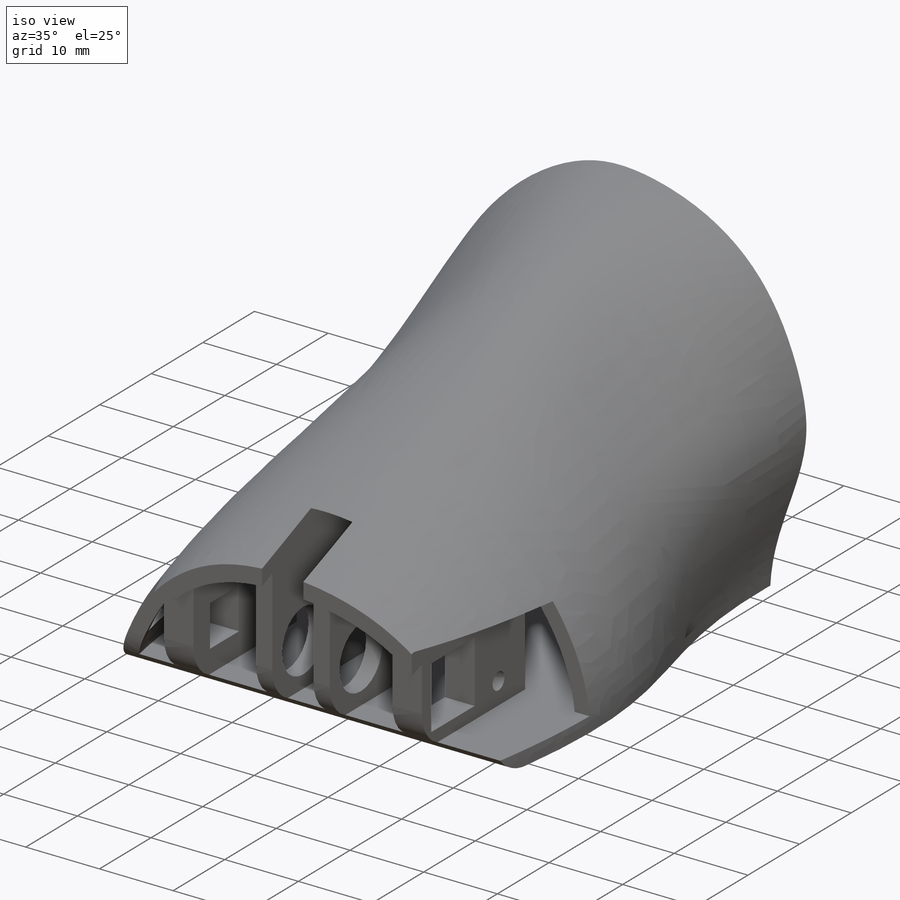
[diagram: iso view]
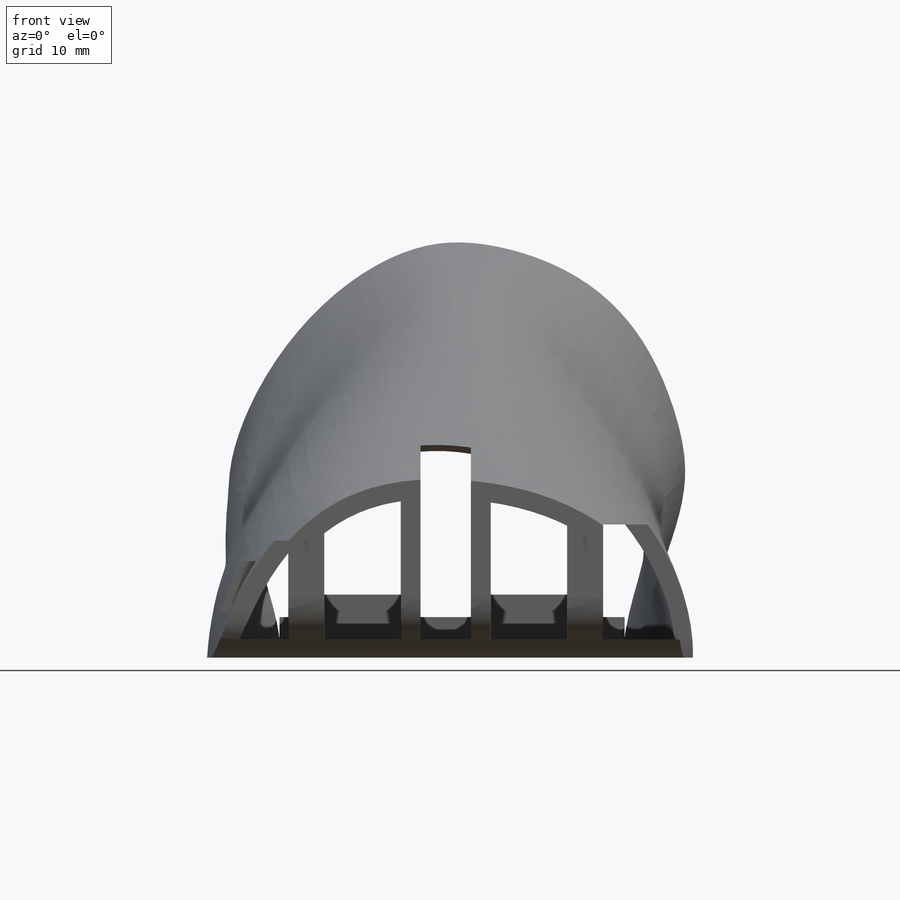
[diagram: front view]
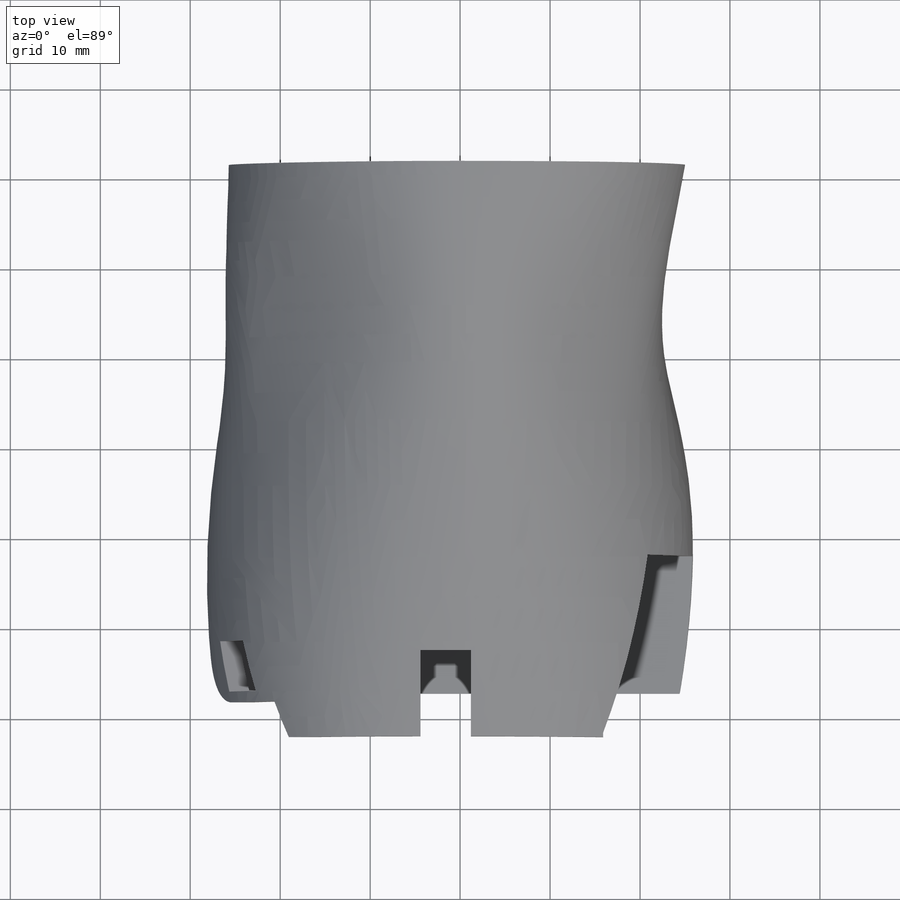
[diagram: top view]
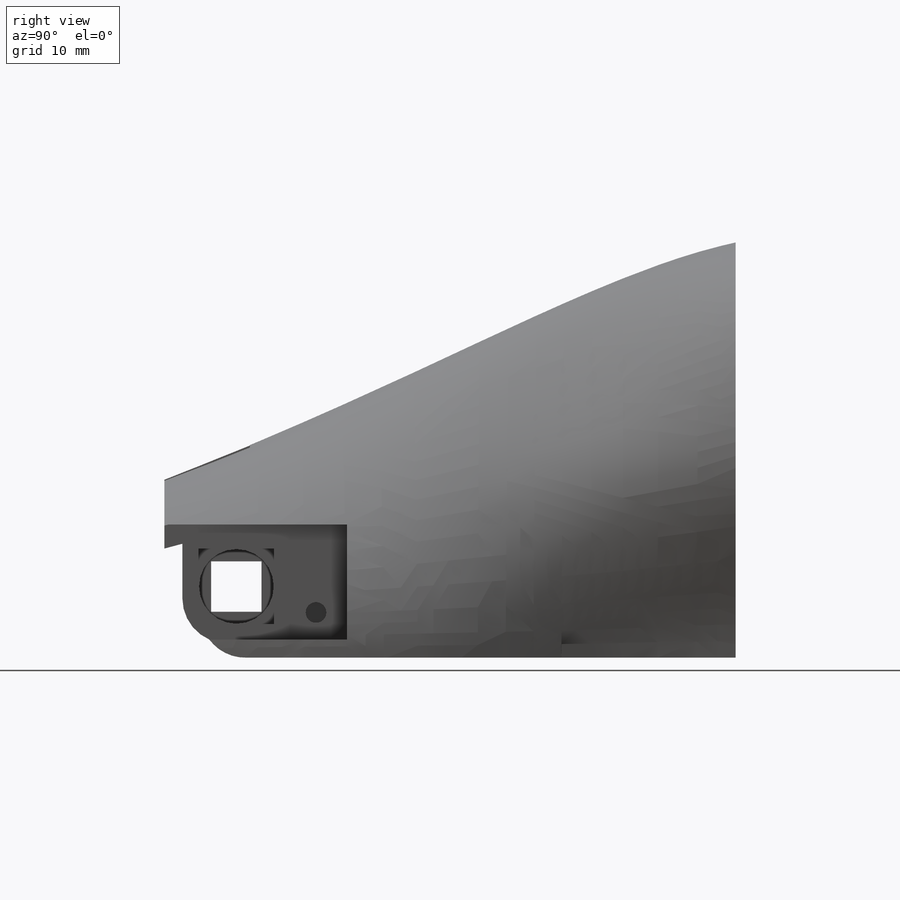
[diagram: right view]
SOLIDWORKS PART (.sldprt)
format: sldprt  version: not decoded by parser v0  size: 5,090,816 bytes
history: native  units: mm
features: sketch x48, plane x23, cut_extrude x11, fillet x4, extrude x3, surface_op x2, material x1, shell x1, boolean_combine x1, hole x1, mirror x1, delete_body x1 + 1 further entry (+14 scaffold rows collapsed; 3 parser-record rows omitted)
feature tree (115):
  scaffold x14  (default folders/planes/origin — collapsed)
  material  "Polyamide"
  plane  "Plan de face"
  plane  "Plan de dessus"
  plane  "Plan de droite"
  plane  "Front Plane-new_foot"
  plane  "Top Plane-new_foot"
  plane  "Right Plane-new_foot"
  sketch  "lateral_dimensions-new_foot"  dims[D1=51.0mm D2=98.0mm D3=47.0mm D4=29.8mm D5=104.3mm D6=134.1mm D7=31.8mm D8=4.0mm D9=15.0mm]
  sketch  "planes_positions-new_foot"
  sketch  "top_dimensions-new_foot"  dims[c1.D1=28.5mm c1.D2=26.0mm c2.D1=26.0mm c2.D2=28.5mm]
  sketch  "lateral_shape-new_foot"
  plane  "sole_plane-new_foot"
  sketch  "sole_shape-new_foot"  dims[D1=~51.73616mm]
  plane  "mid_top_plane-new_foot"
  sketch  "mid_top_dimensions-new_foot"
  sketch  "Sketch1-new_foot"
  plane  "Plane2-new_foot"
  sketch  "Sketch2-new_foot"
  plane  "Plane3-new_foot"
  sketch  "Sketch3-new_foot"
  plane  "Plane4-new_foot"
  sketch  "Sketch4-new_foot"
  plane  "Plane6-new_foot"
  sketch  "Sketch6-new_foot"
  plane  "Plane8-new_foot"
  sketch  "Sketch8-new_foot"
  plane  "Plane9-new_foot"
  sketch  "Sketch9-new_foot"
  plane  "Plane7-new_foot"
  sketch  "3DSketch3-new_foot"
  sketch  "3DSketch8-new_foot"
  sketch  "3DSketch9-new_foot"
  sketch  "3DSketch1-new_foot"
  sketch  "3DSketch2-new_foot"
  sketch  "3DSketch6-new_foot"
  sketch  "3DSketch4-new_foot"
  sketch  "3DSketch5-new_foot"
  plane  "Plane11-new_foot"
  sketch  "Sketch22-new_foot"
  sketch  "Sketch24-new_foot"  dims[D1=1.0mm]
  sketch  "Sketch26-new_foot"
  sketch  "Sketch27-new_foot"  dims[D1=18.0mm]
  sketch  "Sketch28-new_foot"  dims[c1.D1=16.0mm c1.D2=16.0mm c1.D3=16.0mm c2.D2=9.0mm c2.D3=2.0mm]
  plane  "Plane10-new_foot"
  sketch  "Sketch11-new_foot"  dims[D1=47.0mm D2=25.0mm D3=26.0mm D4=3.0mm D5=3.0mm]
  sketch  "Sketch12-new_foot"  dims[c1.D1=8.3mm c1.D2=8.3mm c1.D3=8.3mm c1.D4=8.3mm c2.D2=39.0mm c2.D3=12.5mm c2.D4=5.0mm c2.D5=3.0mm c2.D6=3.0mm c2.D7=19.0mm c3.D5=5.0mm]
  sketch  "Sketch21-new_foot"  dims[D1=5.0mm D2=22.0mm]
  plane  "Plane5-new_foot"
  sketch  "Sketch35-new_foot"  dims[D1=5.0mm D2=24.0mm]
  sketch  "Sketch36-new_foot"
  sketch  "Sketch37-new_foot"
  "new_foot"
  parser-record x3  (decoder bookkeeping rows leaked as tree rows — omitted from the tree; the rows remain in map.json)
  plane  "Plane31"
  plane  "Plane32"
  surface_op  "Surface-Offset3"
  surface_op  "Surface-Offset4"
  plane  "Plane34"
  shell  "Shell2"  Thickness=2mm
  boolean_combine  "Combine3"
  sketch  "Sketch45"  dims[c1.D1=5.0mm c1.D2=9.0mm c1.D3=2.0mm c1.D4=5.0mm c1.D5=~3.804349mm c2.D5=90.0deg c3.D5=2.0mm c3.D6=9.0mm c3.D7=5.0mm c3.D8=1.0mm c3.D9=16.0mm c3.D1=16.0mm c3.D2=20.0mm c3.D3=20.0mm c3.D4=4.0mm c4.D5=8.5mm c4.D6=1.2mm c4.D7=2.2mm c4.D8=5.6mm c4.D9=2.2mm c4.D10=20.0mm c4.D11=4.0mm c4.D12=8.5mm c4.D13=20.0mm c4.D14=18.0mm]
  extrude  "Boss-Extrude3"  [1 undecoded]
  sketch  "Sketch47"  dims[c1.D1=8.3mm c1.D2=16.0mm c1.D3=16.0mm c2.D2=11.0mm c2.D3=4.0mm c3.D2=5.9mm]
  cut_extrude  "Cut-Extrude2"  [1 undecoded]
  sketch  "Sketch53"  dims[c1.D1=5.6mm c1.D2=5.6mm c1.D3=5.9mm c1.D4=4.0mm c2.D3=5.9mm]
  cut_extrude  "Cut-Extrude7"  [1 undecoded]
  sketch  "Sketch54"  dims[c1.D1=8.4mm c1.D2=5.9mm c1.D3=4.0mm c1.D4=8.4mm c2.D2=5.9mm]
  cut_extrude  "Cut-Extrude8"  [1 undecoded]
  sketch  "Sketch55"  dims[c1.D1=24.0mm c1.D2=11.75mm c1.D3=6.0mm c1.D4=4.0mm c1.D5=16.5mm c2.D3=6.25mm c2.D1=12.8mm c2.D2=20.3mm]
  cut_extrude  "Cut-Extrude9"  [1 undecoded]
  sketch  "Sketch48"  dims[c1.D1=7.0mm c1.D2=11.0mm c1.D3=11.0mm c2.D1=9.5mm]
  sketch  "Sketch49"  dims[c1.D1=12.0mm c1.D2=2.0mm c1.D3=12.0mm c1.D4=2.0mm c1.D5=3.0mm c1.D6=3.0mm c1.D7=30.0mm c1.D8=30.0mm c2.D2=25.0mm c2.D7=1.75mm c2.D4=25.0mm c2.D8=1.75mm]
  extrude  "Boss-Extrude5"  Depth=5mm
  sketch  "Sketch50"  dims[D1=8.5mm D2=1.75mm D3=1.75mm D4=1.75mm D5=1.75mm D6=8.5mm]
  cut_extrude  "Cut-Extrude4"  [1 undecoded]
  cut_extrude  "Cut-Extrude10"  [1 undecoded]
  sketch  "Sketch56"  dims[c1.D1=5.5mm c1.D2=2.2mm c1.D3=1.4mm c1.D4=1.9mm c2.D3=1.4mm]
  cut_extrude  "Cut-Extrude11"  Depth=8mm
  sketch  "Sketch57"  dims[c1.D1=2.3mm c1.D2=2.3mm c1.D3=2.3mm c2.D2=4.65mm c2.D3=3.0mm]
  cut_extrude  "Cut-Extrude12"  [1 undecoded]
  sketch  "Sketch63"  dims[D1=4.0mm D2=~67.152865mm]
  cut_extrude  "Cut-Extrude13"  Depth=2mm
  sketch  "Sketch64"
  cut_extrude  "Cut-Extrude14"  Depth=11mm
  fillet  "Fillet3"  Radius=5mm
  fillet  "Fillet4"  Radius=5mm
  fillet  "Fillet5"  Radius=5mm
  fillet  "Fillet6"  Radius=1.5mm
  plane  "Plane35"
  sketch  "Sketch65"
  cut_extrude  "Cut-Extrude15"  [1 undecoded]
  sketch  "Sketch66"  dims[D1=10.0mm]
  extrude  "Boss-Extrude6"  Depth=2.5mm
  hole  "CBORE for M2 Hex Socket Head Cap Screw1"  Diameter=2.2mm Depth=4.499997mm
  sketch  "Sketch68"  dims[c1.D1=0.5mm c1.D2=6.0mm c1.D3=15.0mm c1.D4=16.0mm c2.D3=~173.268901deg]
  sketch  "Sketch67"  dims[hole-wizard template sketch: 42 standard entries collapsed; hole parameters kept: c12.Thru Hole Depth=~4.499997mm c12.C'Bore Dia.=5.0mm c12.C'Bore Depth=3.0mm c12.Mid C'Sink Dia.=2.25mm c12.D6=~5.388154mm c12.Mid C'Sink Angle=90.0deg]
  plane  "Plane36"  Offset=30mm
  mirror  "Mirror1"
  delete_body  "Body-Delete1"
decode coverage: 35 of 73 modeling features carry decoded parameters; 1 rows unclassified (native names shown)
note: ~ marks probable driven/reference dimensions
note: 9 parameter values undecoded
summary: no parameter record found for 9 features
note: suppression state not decoded; provenance and decode notes live in map.json
